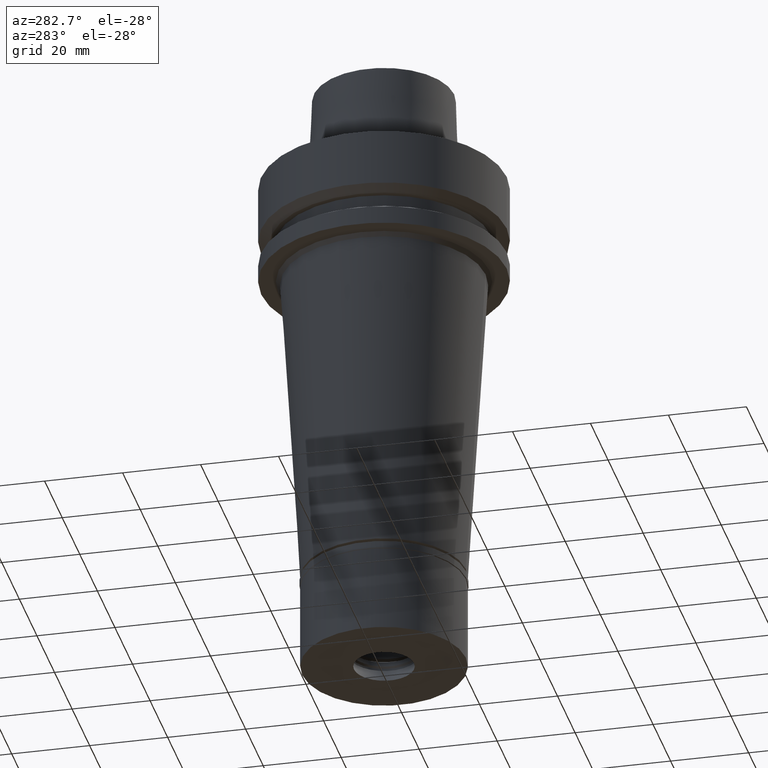
[diagram: clean part render]
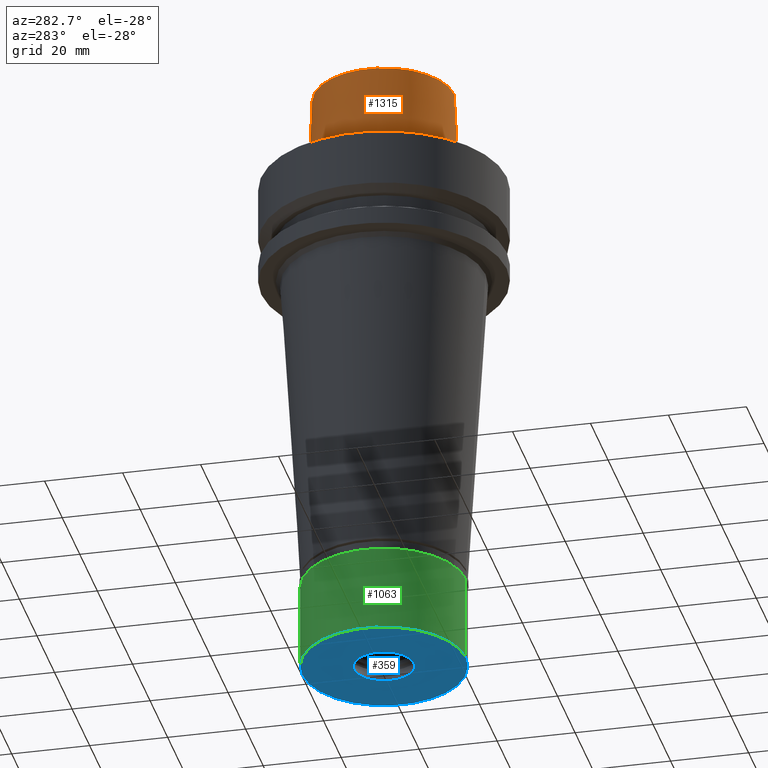
[diagram: same view with three faces highlighted in distinct colors, each labeled with its STEP entity id]
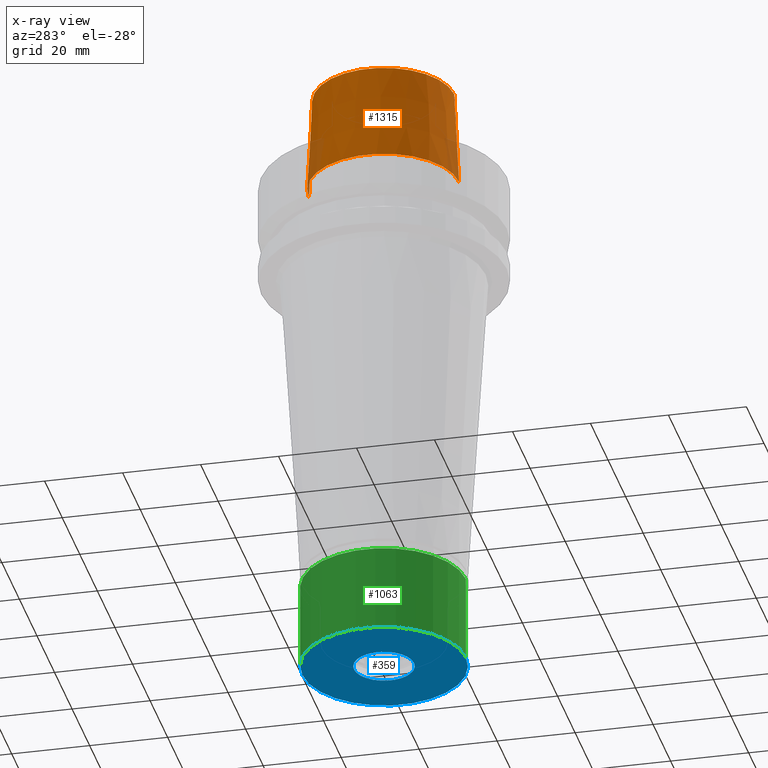
[diagram: x-ray of the same camera — body ghosted, the three highlighted faces saturated]
A machine part, auxiliary view with three faces highlighted in distinct colors.
The next image is the same camera in x-ray (body ghosted, the three faces saturated) — at least one of them is partly hidden behind the body in this view.
Their STEP definitions:

[orange] entity #1315 — the highlighted conical surface has half-angle 2.862 deg.
#45 = CARTESIAN_POINT ( 'NONE',  ( 0.0000000000000000000, 0.0000000000000000000, 12.50000000000000000 ) ) ;
#287 = LINE ( 'NONE', #473, #1235 ) ;
#461 = DIRECTION ( 'NONE',  ( 0.0000000000000000000, 0.0000000000000000000, 1.000000000000000000 ) ) ;
#473 = CARTESIAN_POINT ( 'NONE',  ( 0.0000000000000000000, -18.00000182882000033, 25.00000000000000000 ) ) ;
#527 = DIRECTION ( 'NONE',  ( 0.0000000000000000000, 0.0000000000000000000, -1.000000000000000000 ) ) ;
#647 = ORIENTED_EDGE ( 'NONE', *, *, #2573, .T. ) ;
#698 = DIRECTION ( 'NONE',  ( 0.0000000000000000000, 1.000000000000000000, 0.0000000000000000000 ) ) ;
#757 = EDGE_CURVE ( 'NONE', #1471, #2655, #1955, .T. ) ;
#804 = CARTESIAN_POINT ( 'NONE',  ( 0.0000000000000000000, 19.24999954280000125, 3.410605131648000255E-13 ) ) ;
#1091 = CARTESIAN_POINT ( 'NONE',  ( 0.0000000000000000000, 18.00000182882000033, 25.00000000000000000 ) ) ;
#1192 = EDGE_CURVE ( 'NONE', #2655, #1627, #2673, .T. ) ;
#1235 = VECTOR ( 'NONE', #2705, 999.9999999999998863 ) ;
#1315 = ADVANCED_FACE ( 'NONE', ( #1804 ), #1614, .T. ) ;
#1342 = ORIENTED_EDGE ( 'NONE', *, *, #1192, .T. ) ;
#1377 = AXIS2_PLACEMENT_3D ( 'NONE', #1778, #461, #698 ) ;
#1381 = VERTEX_POINT ( 'NONE', #1457 ) ;
#1415 = CARTESIAN_POINT ( 'NONE',  ( 0.0000000000000000000, 0.0000000000000000000, 25.00000000000000000 ) ) ;
#1457 = CARTESIAN_POINT ( 'NONE',  ( 0.0000000000000000000, -19.24999954280000125, 3.410605131648000255E-13 ) ) ;
#1471 = VERTEX_POINT ( 'NONE', #1920 ) ;
#1614 = CONICAL_SURFACE ( 'NONE', #2210, 18.62500068580999724, 0.04995830450907576964 ) ;
#1627 = VERTEX_POINT ( 'NONE', #804 ) ;
#1651 = DIRECTION ( 'NONE',  ( 0.0000000000000000000, 0.0000000000000000000, -1.000000000000000000 ) ) ;
#1752 = DIRECTION ( 'NONE',  ( 0.0000000000000000000, 0.04993752584486958745, -0.9987523434327917338 ) ) ;
#1757 = ORIENTED_EDGE ( 'NONE', *, *, #2644, .F. ) ;
#1778 = CARTESIAN_POINT ( 'NONE',  ( 0.0000000000000000000, 0.0000000000000000000, 5.115907697473000027E-13 ) ) ;
#1804 = FACE_OUTER_BOUND ( 'NONE', #1914, .T. ) ;
#1842 = VECTOR ( 'NONE', #1752, 999.9999999999998863 ) ;
#1914 = EDGE_LOOP ( 'NONE', ( #647, #1757, #2109, #1342 ) ) ;
#1920 = CARTESIAN_POINT ( 'NONE',  ( 0.0000000000000000000, -18.00000182882000033, 25.00000000000000000 ) ) ;
#1955 = CIRCLE ( 'NONE', #2318, 18.00000182882000033 ) ;
#2043 = CARTESIAN_POINT ( 'NONE',  ( 0.0000000000000000000, 18.00000182882000033, 25.00000000000000000 ) ) ;
#2102 = DIRECTION ( 'NONE',  ( 0.0000000000000000000, -1.000000000000000000, 0.0000000000000000000 ) ) ;
#2109 = ORIENTED_EDGE ( 'NONE', *, *, #757, .T. ) ;
#2210 = AXIS2_PLACEMENT_3D ( 'NONE', #45, #527, #2493 ) ;
#2291 = CIRCLE ( 'NONE', #1377, 19.24999954280000125 ) ;
#2318 = AXIS2_PLACEMENT_3D ( 'NONE', #1415, #1651, #2102 ) ;
#2493 = DIRECTION ( 'NONE',  ( 0.0000000000000000000, -1.000000000000000000, 0.0000000000000000000 ) ) ;
#2573 = EDGE_CURVE ( 'NONE', #1627, #1381, #2291, .T. ) ;
#2644 = EDGE_CURVE ( 'NONE', #1471, #1381, #287, .T. ) ;
#2655 = VERTEX_POINT ( 'NONE', #2043 ) ;
#2673 = LINE ( 'NONE', #1091, #1842 ) ;
#2705 = DIRECTION ( 'NONE',  ( 0.0000000000000000000, -0.04993752584486958745, -0.9987523434327917338 ) ) ;

[blue] entity #359 — the highlighted planar face has unit normal (0, 0, -1).
#80 = EDGE_CURVE ( 'NONE', #2193, #1313, #786, .T. ) ;
#101 = AXIS2_PLACEMENT_3D ( 'NONE', #679, #1121, #1549 ) ;
#133 = DIRECTION ( 'NONE',  ( 0.0000000000000000000, -1.000000000000000000, 0.0000000000000000000 ) ) ;
#215 = EDGE_LOOP ( 'NONE', ( #2136, #2484 ) ) ;
#222 = EDGE_CURVE ( 'NONE', #2829, #1892, #1716, .T. ) ;
#236 = CIRCLE ( 'NONE', #1568, 21.00000000000000000 ) ;
#277 = AXIS2_PLACEMENT_3D ( 'NONE', #1450, #315, #999 ) ;
#315 = DIRECTION ( 'NONE',  ( 0.0000000000000000000, 0.0000000000000000000, -1.000000000000000000 ) ) ;
#356 = CARTESIAN_POINT ( 'NONE',  ( 0.0000000000000000000, 0.0000000000000000000, -24.29999999999999716 ) ) ;
#359 = ADVANCED_FACE ( 'NONE', ( #2539, #596 ), #1000, .T. ) ;
#446 = ORIENTED_EDGE ( 'NONE', *, *, #2213, .F. ) ;
#596 = FACE_BOUND ( 'NONE', #1118, .T. ) ;
#598 = CARTESIAN_POINT ( 'NONE',  ( 0.0000000000000000000, 21.00000000000000000, -24.29999999999999716 ) ) ;
#610 = AXIS2_PLACEMENT_3D ( 'NONE', #2667, #1554, #2441 ) ;
#679 = CARTESIAN_POINT ( 'NONE',  ( 0.0000000000000000000, 0.0000000000000000000, -24.29999999999999716 ) ) ;
#781 = CARTESIAN_POINT ( 'NONE',  ( 0.0000000000000000000, 7.700000000000000178, -24.29999999999999716 ) ) ;
#786 = CIRCLE ( 'NONE', #101, 7.700000000000000178 ) ;
#966 = CIRCLE ( 'NONE', #277, 7.700000000000000178 ) ;
#999 = DIRECTION ( 'NONE',  ( 0.0000000000000000000, -1.000000000000000000, 0.0000000000000000000 ) ) ;
#1000 = PLANE ( 'NONE',  #2225 ) ;
#1118 = EDGE_LOOP ( 'NONE', ( #2533, #446 ) ) ;
#1121 = DIRECTION ( 'NONE',  ( 0.0000000000000000000, 0.0000000000000000000, -1.000000000000000000 ) ) ;
#1285 = CARTESIAN_POINT ( 'NONE',  ( 0.0000000000000000000, 0.0000000000000000000, -24.29999999999999716 ) ) ;
#1313 = VERTEX_POINT ( 'NONE', #1419 ) ;
#1419 = CARTESIAN_POINT ( 'NONE',  ( 0.0000000000000000000, -7.700000000000000178, -24.29999999999999716 ) ) ;
#1450 = CARTESIAN_POINT ( 'NONE',  ( 0.0000000000000000000, 0.0000000000000000000, -24.29999999999999716 ) ) ;
#1495 = DIRECTION ( 'NONE',  ( 0.0000000000000000000, 0.0000000000000000000, 1.000000000000000000 ) ) ;
#1549 = DIRECTION ( 'NONE',  ( 0.0000000000000000000, 1.000000000000000000, 0.0000000000000000000 ) ) ;
#1554 = DIRECTION ( 'NONE',  ( 0.0000000000000000000, 0.0000000000000000000, 1.000000000000000000 ) ) ;
#1557 = EDGE_CURVE ( 'NONE', #1892, #2829, #236, .T. ) ;
#1568 = AXIS2_PLACEMENT_3D ( 'NONE', #1285, #1495, #2380 ) ;
#1716 = CIRCLE ( 'NONE', #610, 21.00000000000000000 ) ;
#1892 = VERTEX_POINT ( 'NONE', #598 ) ;
#2099 = CARTESIAN_POINT ( 'NONE',  ( 0.0000000000000000000, -21.00000000000000000, -24.29999999999999716 ) ) ;
#2118 = DIRECTION ( 'NONE',  ( 0.0000000000000000000, 0.0000000000000000000, -1.000000000000000000 ) ) ;
#2136 = ORIENTED_EDGE ( 'NONE', *, *, #1557, .F. ) ;
#2193 = VERTEX_POINT ( 'NONE', #781 ) ;
#2213 = EDGE_CURVE ( 'NONE', #1313, #2193, #966, .T. ) ;
#2225 = AXIS2_PLACEMENT_3D ( 'NONE', #356, #2118, #133 ) ;
#2380 = DIRECTION ( 'NONE',  ( 0.0000000000000000000, 1.000000000000000000, 0.0000000000000000000 ) ) ;
#2441 = DIRECTION ( 'NONE',  ( 0.0000000000000000000, -1.000000000000000000, 0.0000000000000000000 ) ) ;
#2484 = ORIENTED_EDGE ( 'NONE', *, *, #222, .F. ) ;
#2533 = ORIENTED_EDGE ( 'NONE', *, *, #80, .F. ) ;
#2539 = FACE_OUTER_BOUND ( 'NONE', #215, .T. ) ;
#2667 = CARTESIAN_POINT ( 'NONE',  ( 0.0000000000000000000, 0.0000000000000000000, -24.29999999999999716 ) ) ;
#2829 = VERTEX_POINT ( 'NONE', #2099 ) ;

[green] entity #1063 — the highlighted cylindrical surface (partial cylindrical patch) has radius 21 mm, axis along (0, 0, -1).
#19 = CYLINDRICAL_SURFACE ( 'NONE', #2837, 21.00000000000000000 ) ;
#39 = VERTEX_POINT ( 'NONE', #1827 ) ;
#236 = CIRCLE ( 'NONE', #1568, 21.00000000000000000 ) ;
#344 = AXIS2_PLACEMENT_3D ( 'NONE', #1563, #2660, #696 ) ;
#350 = ORIENTED_EDGE ( 'NONE', *, *, #1058, .T. ) ;
#448 = DIRECTION ( 'NONE',  ( 0.0000000000000000000, 0.0000000000000000000, -1.000000000000000000 ) ) ;
#459 = CARTESIAN_POINT ( 'NONE',  ( 0.0000000000000000000, -21.00000000000000000, -2.000000000000000000 ) ) ;
#514 = DIRECTION ( 'NONE',  ( 0.0000000000000000000, 0.0000000000000000000, -1.000000000000000000 ) ) ;
#564 = LINE ( 'NONE', #2286, #769 ) ;
#598 = CARTESIAN_POINT ( 'NONE',  ( 0.0000000000000000000, 21.00000000000000000, -24.29999999999999716 ) ) ;
#696 = DIRECTION ( 'NONE',  ( 0.0000000000000000000, -1.000000000000000000, 0.0000000000000000000 ) ) ;
#769 = VECTOR ( 'NONE', #514, 1000.000000000000000 ) ;
#868 = CARTESIAN_POINT ( 'NONE',  ( 0.0000000000000000000, 0.0000000000000000000, 0.0000000000000000000 ) ) ;
#907 = ORIENTED_EDGE ( 'NONE', *, *, #2059, .T. ) ;
#1038 = EDGE_LOOP ( 'NONE', ( #2591, #1516, #350, #907 ) ) ;
#1058 = EDGE_CURVE ( 'NONE', #1099, #39, #2321, .T. ) ;
#1063 = ADVANCED_FACE ( 'NONE', ( #2214 ), #19, .T. ) ;
#1099 = VERTEX_POINT ( 'NONE', #459 ) ;
#1285 = CARTESIAN_POINT ( 'NONE',  ( 0.0000000000000000000, 0.0000000000000000000, -24.29999999999999716 ) ) ;
#1495 = DIRECTION ( 'NONE',  ( 0.0000000000000000000, 0.0000000000000000000, 1.000000000000000000 ) ) ;
#1516 = ORIENTED_EDGE ( 'NONE', *, *, #2811, .F. ) ;
#1557 = EDGE_CURVE ( 'NONE', #1892, #2829, #236, .T. ) ;
#1563 = CARTESIAN_POINT ( 'NONE',  ( 0.0000000000000000000, 0.0000000000000000000, -2.000000000000000000 ) ) ;
#1568 = AXIS2_PLACEMENT_3D ( 'NONE', #1285, #1495, #2380 ) ;
#1570 = CARTESIAN_POINT ( 'NONE',  ( 0.0000000000000000000, 21.00000000000000000, -2.000000000000000000 ) ) ;
#1616 = DIRECTION ( 'NONE',  ( 0.0000000000000000000, 0.0000000000000000000, -1.000000000000000000 ) ) ;
#1827 = CARTESIAN_POINT ( 'NONE',  ( 0.0000000000000000000, 21.00000000000000000, -2.000000000000000000 ) ) ;
#1892 = VERTEX_POINT ( 'NONE', #598 ) ;
#2032 = LINE ( 'NONE', #1570, #2115 ) ;
#2059 = EDGE_CURVE ( 'NONE', #39, #1892, #2032, .T. ) ;
#2099 = CARTESIAN_POINT ( 'NONE',  ( 0.0000000000000000000, -21.00000000000000000, -24.29999999999999716 ) ) ;
#2115 = VECTOR ( 'NONE', #1616, 1000.000000000000000 ) ;
#2214 = FACE_OUTER_BOUND ( 'NONE', #1038, .T. ) ;
#2286 = CARTESIAN_POINT ( 'NONE',  ( 0.0000000000000000000, -21.00000000000000000, -2.000000000000000000 ) ) ;
#2321 = CIRCLE ( 'NONE', #344, 21.00000000000000000 ) ;
#2380 = DIRECTION ( 'NONE',  ( 0.0000000000000000000, 1.000000000000000000, 0.0000000000000000000 ) ) ;
#2433 = DIRECTION ( 'NONE',  ( 0.0000000000000000000, -1.000000000000000000, 0.0000000000000000000 ) ) ;
#2591 = ORIENTED_EDGE ( 'NONE', *, *, #1557, .T. ) ;
#2660 = DIRECTION ( 'NONE',  ( 0.0000000000000000000, 0.0000000000000000000, -1.000000000000000000 ) ) ;
#2811 = EDGE_CURVE ( 'NONE', #1099, #2829, #564, .T. ) ;
#2829 = VERTEX_POINT ( 'NONE', #2099 ) ;
#2837 = AXIS2_PLACEMENT_3D ( 'NONE', #868, #448, #2433 ) ;